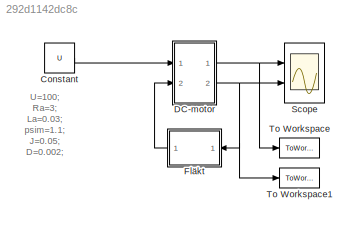
MODEL slx_292d1142dc8c
KIND model
CONFIG AbsTol = 1e-6
CONFIG EnableMultiTasking = on
CONFIG FixedStep = auto
CONFIG MaxStep = auto
CONFIG MinStep = auto
CONFIG RelTol = 1e-6
CONFIG SampleTimeConstraint = Unconstrained
CONFIG Solver = ode45
CONFIG SolverName = ode45
CONFIG StartTime = 0.0
CONFIG StopTime = 1
BLOCK [Constant] Constant
  Value = U
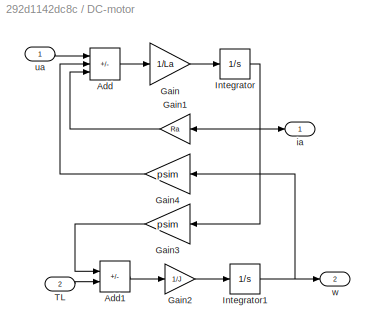
BLOCK [SubSystem] DC-motor
  Ports = [2, 2]
  RequestExecContextInheritance = off
BLOCK [Sum] DC-motor/Add
  IconShape = rectangular
  Inputs = +--
  Ports = [3, 1]
BLOCK [Sum] DC-motor/Add1
  IconShape = rectangular
  Inputs = +-
  Ports = [2, 1]
BLOCK [Gain] DC-motor/Gain
  Gain = 1/La
BLOCK [Gain] DC-motor/Gain1
  Gain = Ra
  NameLocation = top
BLOCK [Gain] DC-motor/Gain2
  Gain = 1/J
BLOCK [Gain] DC-motor/Gain3
  Gain = psim
  NameLocation = top
BLOCK [Gain] DC-motor/Gain4
  Gain = psim
  NameLocation = top
BLOCK [Integrator] DC-motor/Integrator
  Ports = [1, 1]
BLOCK [Integrator] DC-motor/Integrator1
  Ports = [1, 1]
BLOCK [Inport] DC-motor/TL
  Port = 2
BLOCK [Outport] DC-motor/ia
  VectorParamsAs1DForOutWhenUnconnected = off
BLOCK [Inport] DC-motor/ua
BLOCK [Outport] DC-motor/w
  Port = 2
  VectorParamsAs1DForOutWhenUnconnected = off
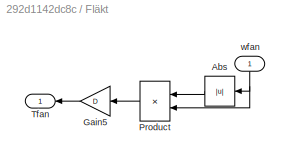
BLOCK [SubSystem] Fläkt
  Ports = [1, 1]
  RequestExecContextInheritance = off
BLOCK [Abs] Fläkt/Abs
  NameLocation = top
  SaturateOnIntegerOverflow = off
BLOCK [Gain] Fläkt/Gain5
  Gain = D
  NameLocation = top
BLOCK [Product] Fläkt/Product
  NameLocation = top
  Ports = [2, 1]
  RndMeth = Zero
BLOCK [Outport] Fläkt/Tfan
  VectorParamsAs1DForOutWhenUnconnected = off
BLOCK [Inport] Fläkt/wfan
  NameLocation = right
BLOCK [Scope] Scope
  Floating = off
  NumInputPorts = 2
  Ports = [2]
  ScopeSpecificationString = Simulink.scopes.TimeScopeBlockCfg('CurrentConfiguration', extmgr.ConfigurationSet(extmgr.Configuration('Core','General UI',true),extmgr.Configuration('Core','Source UI',true),extmgr.Configuration('Sources','WiredSimulink',true,'DataLoggingVariableName','mdc','DataLoggingSaveFormat','Structure','DataLoggingDecimation','1','DataLoggingDecimateData',true),extmgr.Configuration('Visuals','Time Domain',...<+2396ch>
BLOCK [ToWorkspace] To Workspace
  MaxDataPoints = inf
  Ports = [1]
  SampleTime = -1
  VariableName = iadc
BLOCK [ToWorkspace] To Workspace1
  MaxDataPoints = inf
  Ports = [1]
  SampleTime = -1
  VariableName = wdc
ANNOTATION (root): U=100; Ra=3; La=0.03; psim=1.1; J=0.05; D=0.002;
LINE Constant:1 -> DC-motor:1
LINE DC-motor/Add1:1 -> DC-motor/Gain2:1
LINE DC-motor/Add:1 -> DC-motor/Gain:1
LINE DC-motor/Gain1:1 -> DC-motor/Add:3
LINE DC-motor/Gain2:1 -> DC-motor/Integrator1:1
LINE DC-motor/Gain3:1 -> DC-motor/Add1:1
LINE DC-motor/Gain4:1 -> DC-motor/Add:2
LINE DC-motor/Gain:1 -> DC-motor/Integrator:1
NET DC-motor/Integrator1:1 -> DC-motor/Gain4:1, DC-motor/w:1
NET DC-motor/Integrator:1 -> DC-motor/Gain1:1, DC-motor/Gain3:1, DC-motor/ia:1
LINE DC-motor/TL:1 -> DC-motor/Add1:2
LINE DC-motor/ua:1 -> DC-motor/Add:1
NET DC-motor:1 -> Scope:1, To Workspace:1
NET DC-motor:2 -> Fläkt:1, Scope:2, To Workspace1:1
LINE Fläkt/Abs:1 -> Fläkt/Product:1
LINE Fläkt/Gain5:1 -> Fläkt/Tfan:1
LINE Fläkt/Product:1 -> Fläkt/Gain5:1
NET Fläkt/wfan:1 -> Fläkt/Abs:1, Fläkt/Product:2
LINE Fläkt:1 -> DC-motor:2
note: NET lines group one-source signal fan-out (src -> all destinations, sorted); 1:1 wires keep LINE
